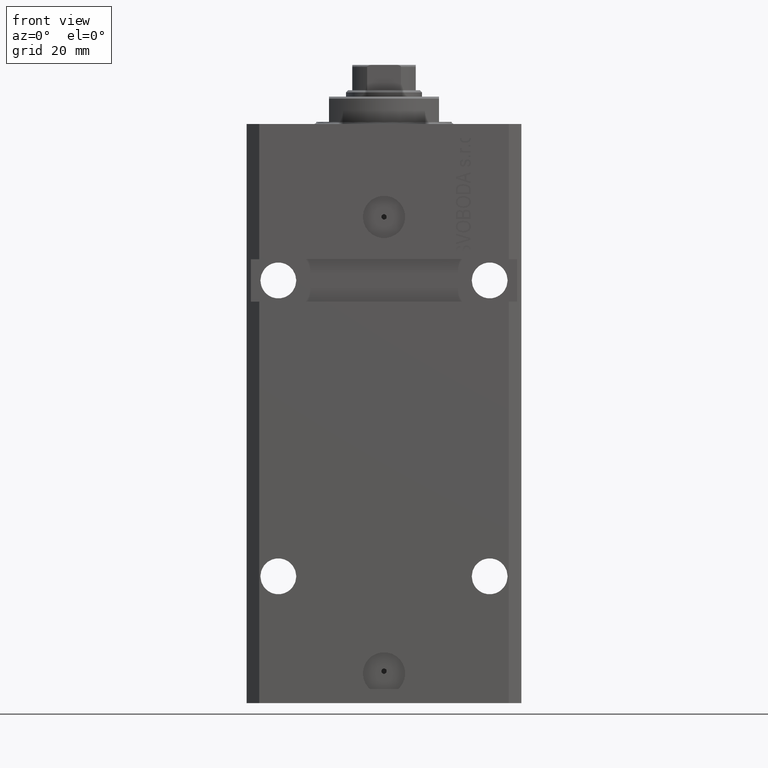
[diagram: clean part render]
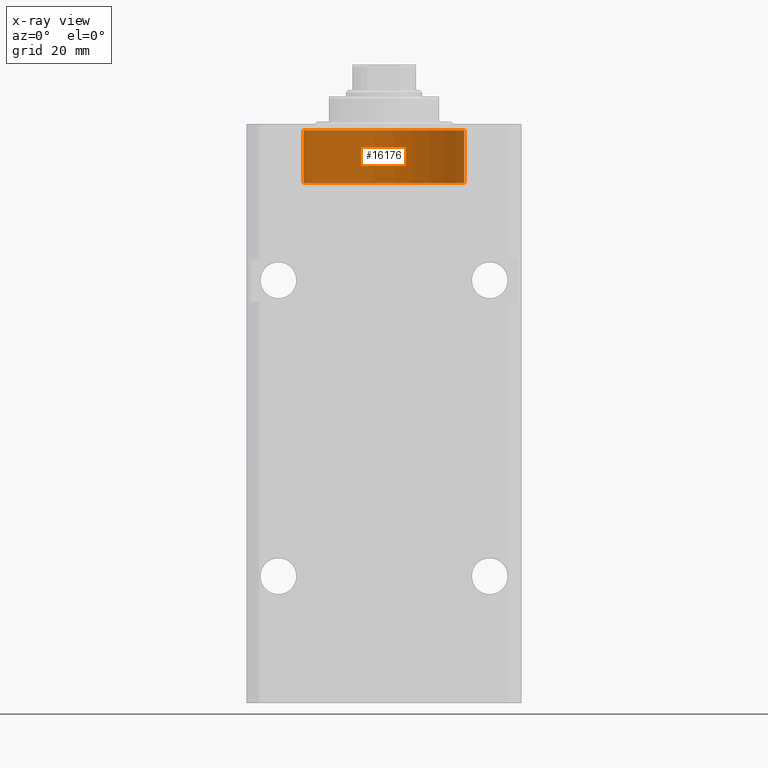
[diagram: x-ray — body ghosted, one internal face saturated and labeled with its STEP entity id]
A machine part, front view, then the same camera in x-ray: the body is ghosted and one INTERNAL B-rep face — a face not visible from any outside direction — is saturated and labeled: STEP entity #16176.
In plain terms, the highlighted cylindrical surface (partial cylindrical patch) has radius 19 mm, axis along (0, -0, 1).
Its self-contained STEP definition (entity closure, byte-faithful):
#175 = AXIS2_PLACEMENT_3D ( 'NONE', #20585, #36185, #6206 ) ;
#1711 = VERTEX_POINT ( 'NONE', #31559 ) ;
#4305 = EDGE_CURVE ( 'NONE', #12727, #46196, #27271, .T. ) ;
#5758 = CARTESIAN_POINT ( 'NONE',  ( 0.000000000000000000, 0.000000000000000000, 14.00000000000000000 ) ) ;
#6206 = DIRECTION ( 'NONE',  ( 1.000000000000000000, 0.000000000000000000, 0.000000000000000000 ) ) ;
#6487 = DIRECTION ( 'NONE',  ( -0.000000000000000000, -0.000000000000000000, -1.000000000000000000 ) ) ;
#7391 = VECTOR ( 'NONE', #45347, 1000.000000000000000 ) ;
#7419 = CARTESIAN_POINT ( 'NONE',  ( -19.00000000000000000, 0.000000000000000000, 14.00000000000000000 ) ) ;
#9158 = EDGE_CURVE ( 'NONE', #27305, #46196, #21584, .T. ) ;
#10329 = ORIENTED_EDGE ( 'NONE', *, *, #12611, .F. ) ;
#10974 = VECTOR ( 'NONE', #40121, 1000.000000000000000 ) ;
#12611 = EDGE_CURVE ( 'NONE', #1711, #27305, #32895, .T. ) ;
#12727 = VERTEX_POINT ( 'NONE', #15655 ) ;
#13314 = FACE_OUTER_BOUND ( 'NONE', #27098, .T. ) ;
#14690 = CARTESIAN_POINT ( 'NONE',  ( 0.000000000000000000, 0.000000000000000000, 1.500000000000004885 ) ) ;
#15655 = CARTESIAN_POINT ( 'NONE',  ( 19.00000000000000000, 2.326828918379970970E-15, 1.500000000000004885 ) ) ;
#16176 = ADVANCED_FACE ( 'NONE', ( #13314 ), #28661, .T. ) ;
#19213 = ORIENTED_EDGE ( 'NONE', *, *, #4305, .T. ) ;
#20479 = CARTESIAN_POINT ( 'NONE',  ( -19.00000000000000000, 0.000000000000000000, 1.500000000000004885 ) ) ;
#20585 = CARTESIAN_POINT ( 'NONE',  ( 0.000000000000000000, 0.000000000000000000, 14.00000000000000000 ) ) ;
#21584 = LINE ( 'NONE', #7419, #10974 ) ;
#26714 = ORIENTED_EDGE ( 'NONE', *, *, #32324, .T. ) ;
#27098 = EDGE_LOOP ( 'NONE', ( #10329, #26714, #19213, #36223 ) ) ;
#27271 = CIRCLE ( 'NONE', #38858, 19.00000000000000000 ) ;
#27305 = VERTEX_POINT ( 'NONE', #47680 ) ;
#28661 = CYLINDRICAL_SURFACE ( 'NONE', #30582, 19.00000000000000000 ) ;
#30582 = AXIS2_PLACEMENT_3D ( 'NONE', #5758, #6487, #35989 ) ;
#31559 = CARTESIAN_POINT ( 'NONE',  ( 19.00000000000000000, 2.326828918379970970E-15, 14.00000000000000000 ) ) ;
#32324 = EDGE_CURVE ( 'NONE', #1711, #12727, #33638, .T. ) ;
#32895 = CIRCLE ( 'NONE', #175, 19.00000000000000000 ) ;
#33638 = LINE ( 'NONE', #33880, #7391 ) ;
#33880 = CARTESIAN_POINT ( 'NONE',  ( 19.00000000000000000, 2.326828918379970970E-15, 14.00000000000000000 ) ) ;
#35989 = DIRECTION ( 'NONE',  ( -1.000000000000000000, 0.000000000000000000, 0.000000000000000000 ) ) ;
#36185 = DIRECTION ( 'NONE',  ( 0.000000000000000000, 0.000000000000000000, 1.000000000000000000 ) ) ;
#36223 = ORIENTED_EDGE ( 'NONE', *, *, #9158, .F. ) ;
#38858 = AXIS2_PLACEMENT_3D ( 'NONE', #14690, #44693, #44940 ) ;
#40121 = DIRECTION ( 'NONE',  ( -0.000000000000000000, -0.000000000000000000, -1.000000000000000000 ) ) ;
#44693 = DIRECTION ( 'NONE',  ( -0.000000000000000000, -0.000000000000000000, 1.000000000000000000 ) ) ;
#44940 = DIRECTION ( 'NONE',  ( 1.000000000000000000, 0.000000000000000000, 0.000000000000000000 ) ) ;
#45347 = DIRECTION ( 'NONE',  ( -0.000000000000000000, -0.000000000000000000, -1.000000000000000000 ) ) ;
#46196 = VERTEX_POINT ( 'NONE', #20479 ) ;
#47680 = CARTESIAN_POINT ( 'NONE',  ( -19.00000000000000000, 0.000000000000000000, 14.00000000000000000 ) ) ;